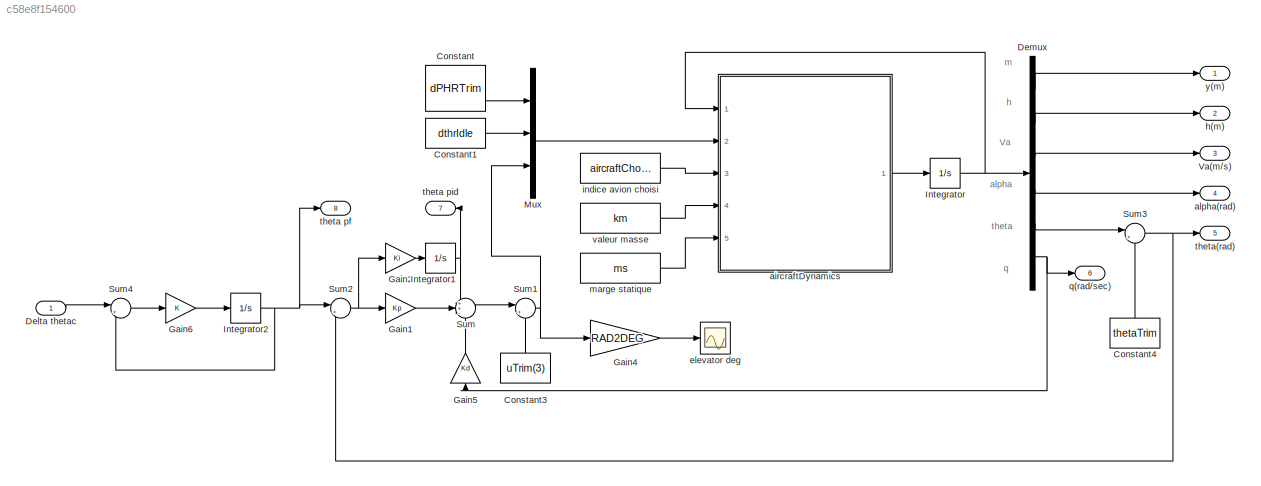
MODEL slx_c58e8f154600
KIND model
CONFIG AbsTol = auto
CONFIG EnableMultiTasking = off
CONFIG FixedStep = auto
CONFIG MaxStep = auto
CONFIG MinStep = auto
CONFIG RelTol = 1e-3
CONFIG SampleTimeConstraint = Unconstrained
CONFIG Solver = VariableStepAuto
CONFIG SolverName = VariableStepAuto
CONFIG StartTime = 0.0
CONFIG StopTime = 7
BLOCK [Constant] Constant
  Value = dPHRTrim
BLOCK [Constant] Constant1
  Value = dthrIdle
BLOCK [Constant] Constant3
  Value = uTrim(3)
BLOCK [Constant] Constant4
  Value = thetaTrim
BLOCK [Inport] Delta thetac 
  IconDisplay = Port number
BLOCK [Demux] Demux
  DisplayOption = bar
  Outputs = 6
  Ports = [1, 6]
BLOCK [Gain] Gain1
  Gain = Kp
  OutDataTypeStr = Inherit: Inherit via internal rule
  ParamDataTypeStr = Inherit: Inherit via internal rule
  SaturateOnIntegerOverflow = off
BLOCK [Gain] Gain2
  Gain = Ki
  OutDataTypeStr = Inherit: Inherit via internal rule
  ParamDataTypeStr = Inherit: Inherit via internal rule
  SaturateOnIntegerOverflow = off
BLOCK [Gain] Gain4
  Gain = RAD2DEG
  OutDataTypeStr = Inherit: Inherit via internal rule
  ParamDataTypeStr = Inherit: Inherit via internal rule
  SaturateOnIntegerOverflow = off
BLOCK [Gain] Gain5
  Gain = Kd
  OutDataTypeStr = Inherit: Inherit via internal rule
  ParamDataTypeStr = Inherit: Inherit via internal rule
  SaturateOnIntegerOverflow = off
BLOCK [Gain] Gain6
  OutDataTypeStr = Inherit: Inherit via internal rule
  ParamDataTypeStr = Inherit: Inherit via internal rule
  SaturateOnIntegerOverflow = off
BLOCK [Integrator] Integrator
  InitialCondition = xTrim
  Ports = [1, 1]
BLOCK [Integrator] Integrator1
  Ports = [1, 1]
BLOCK [Integrator] Integrator2
  Ports = [1, 1]
BLOCK [Mux] Mux
  DisplayOption = bar
  Inputs = 3
  Ports = [3, 1]
BLOCK [Sum] Sum
  IconShape = round
  InputSameDT = off
  Inputs = ++-
  OutDataTypeStr = Inherit: Inherit via internal rule
  Ports = [3, 1]
  SaturateOnIntegerOverflow = off
BLOCK [Sum] Sum1
  IconShape = round
  InputSameDT = off
  Inputs = |++
  OutDataTypeStr = Inherit: Inherit via internal rule
  Ports = [2, 1]
  SaturateOnIntegerOverflow = off
BLOCK [Sum] Sum2
  IconShape = round
  InputSameDT = off
  Inputs = |+-
  OutDataTypeStr = Inherit: Inherit via internal rule
  Ports = [2, 1]
  SaturateOnIntegerOverflow = off
BLOCK [Sum] Sum3
  IconShape = round
  InputSameDT = off
  Inputs = |+-
  OutDataTypeStr = Inherit: Inherit via internal rule
  Ports = [2, 1]
  SaturateOnIntegerOverflow = off
BLOCK [Sum] Sum4
  IconShape = round
  InputSameDT = off
  Inputs = |+-
  OutDataTypeStr = Inherit: Inherit via internal rule
  Ports = [2, 1]
  SaturateOnIntegerOverflow = off
BLOCK [Outport] Va(m//s)
  IconDisplay = Port number
  Port = 3
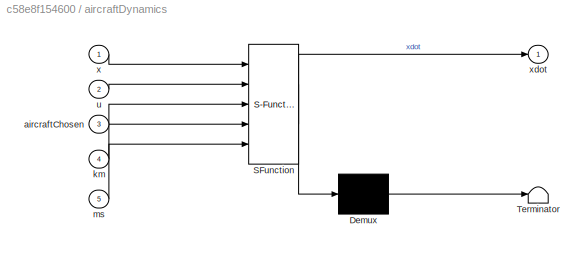
BLOCK [SubSystem] aircraftDynamics
  ErrorFcn = Stateflow.Translate.translate
  PermitHierarchicalResolution = ExplicitOnly
  Ports = [5, 1]
  RequestExecContextInheritance = off
  SFBlockType = MATLAB Function
  TreatAsAtomicUnit = on
BLOCK [Demux] aircraftDynamics/ Demux 
  Outputs = 1
  Ports = [1, 1]
BLOCK [S-Function] aircraftDynamics/ SFunction 
  EnableBusSupport = on
  FunctionName = sf_sfun
  PortCounts = [5 2]
  Ports = [5, 2]
  SFcnIsStateOwnerBlock = off
  SFunctionDeploymentMode = off
  Tag = Stateflow S-Function acDynModelGolfTenueClassique 2
BLOCK [Terminator] aircraftDynamics/ Terminator 
BLOCK [Inport] aircraftDynamics/aircraftChosen
  IconDisplay = Port number
  Port = 3
BLOCK [Inport] aircraftDynamics/km
  IconDisplay = Port number
  Port = 4
BLOCK [Inport] aircraftDynamics/ms
  IconDisplay = Port number
  Port = 5
BLOCK [Inport] aircraftDynamics/u
  IconDisplay = Port number
  Port = 2
BLOCK [Inport] aircraftDynamics/x
  IconDisplay = Port number
BLOCK [Outport] aircraftDynamics/xdot
  IconDisplay = Port number
BLOCK [Outport] alpha(rad)
  IconDisplay = Port number
  Port = 4
BLOCK [Scope] elevator deg
  Floating = off
  NumInputPorts = 1
  Ports = [1]
  ScopeSpecificationString = Simulink.scopes.TimeScopeBlockCfg('CurrentConfiguration', extmgr.ConfigurationSet(extmgr.Configuration('Core','General UI',true),extmgr.Configuration('Core','Source UI',true),extmgr.Configuration('Sources','WiredSimulink',true,'DataLoggingVariableName','ScopeData1'),extmgr.Configuration('Visuals','Time Domain',true,'SerializedDisplays',{struct('MinYLimReal','-34.11355','MaxYLimReal','3.531','YLabe...<+1417ch>
BLOCK [Outport] h(m)
  IconDisplay = Port number
  Port = 2
BLOCK [Constant] indice avion choisi
  Value = aircraftChosen
BLOCK [Constant] marge statique
  Value = ms
BLOCK [Outport] q(rad//sec)
  IconDisplay = Port number
  Port = 6
BLOCK [Outport] theta pf 
  IconDisplay = Port number
  Port = 8
BLOCK [Outport] theta pid
  IconDisplay = Port number
  Port = 7
BLOCK [Outport] theta(rad)
  IconDisplay = Port number
  Port = 5
BLOCK [Constant] valeur masse
  Value = km
BLOCK [Outport] y(m)
  IconDisplay = Port number
ANNOTATION (root): Va
ANNOTATION (root): alpha
ANNOTATION (root): h
ANNOTATION (root): m
ANNOTATION (root): q
ANNOTATION (root): theta
LINE Constant1:1 -> Mux:2
LINE Constant3:1 -> Sum1:2
LINE Constant4:1 -> Sum3:2
LINE Constant:1 -> Mux:1
LINE Delta thetac :1 -> Sum4:1
LINE Demux:1 -> y(m):1
LINE Demux:2 -> h(m):1
LINE Demux:3 -> Va(m//s):1
LINE Demux:4 -> alpha(rad):1
LINE Demux:5 -> Sum3:1
NET Demux:6 -> Gain5:1, q(rad//sec):1
LINE Gain1:1 -> Sum:2
LINE Gain2:1 -> Integrator1:1
LINE Gain4:1 -> elevator deg:1
LINE Gain5:1 -> Sum:3
LINE Gain6:1 -> Integrator2:1
NET Integrator1:1 -> Sum:1, theta pid:1
NET Integrator2:1 -> Sum2:1, Sum4:2, theta pf :1
NET Integrator:1 -> Demux:1, aircraftDynamics:1
LINE Mux:1 -> aircraftDynamics:2
NET Sum1:1 -> Gain4:1, Mux:3
NET Sum2:1 -> Gain1:1, Gain2:1
NET Sum3:1 -> Sum2:2, theta(rad):1
LINE Sum4:1 -> Gain6:1
LINE Sum:1 -> Sum1:1
LINE aircraftDynamics:1 -> Integrator:1
LINE indice avion choisi:1 -> aircraftDynamics:3
LINE marge statique:1 -> aircraftDynamics:5
LINE valeur masse:1 -> aircraftDynamics:4
note: NET lines group one-source signal fan-out (src -> all destinations, sorted); 1:1 wires keep LINE
CHART aircraftDynamics states=1 transitions=1
  STATE_LABEL 'eML_blk_kernel()'
  STATE_LABEL 'SCRIPT:\nfunction xdot = aircraftDynamics(x,u, aircraftChosen,km,ms)\n    TOTAL_SV = 6;\n    xIn = zeros(TOTAL_SV,1);\n    xIn = x;\n    \n\tTOTAL_CMD = 3;\n    uIn = zeros(TOTAL_CMD,1);\n    uIn = u;\n    \n    xdot = utAcDynamicsFunction(xIn,uIn, aircraftChosen,km,ms);\nend %aircraftDynamics\n\n'
